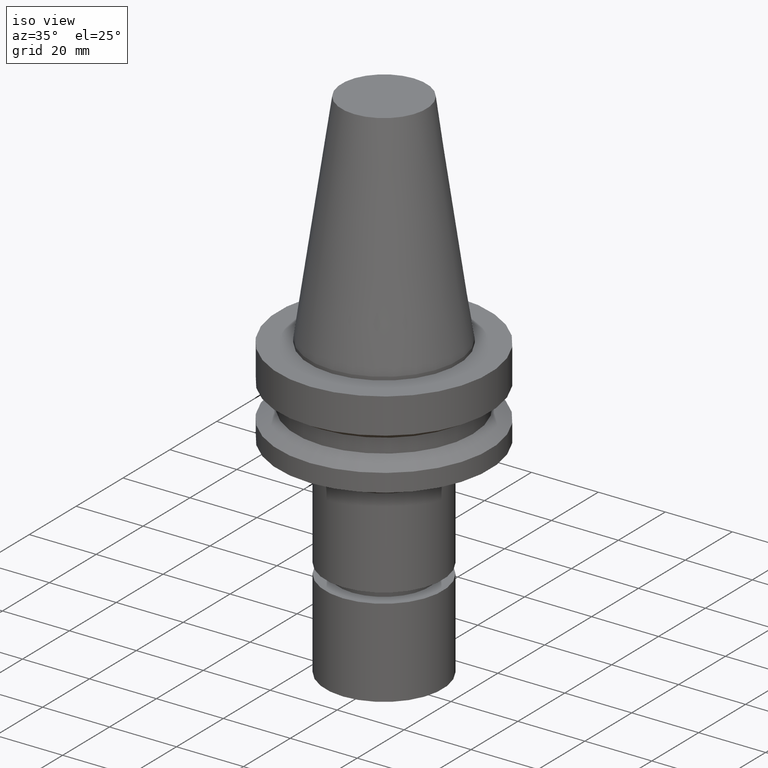
[diagram: clean part render]
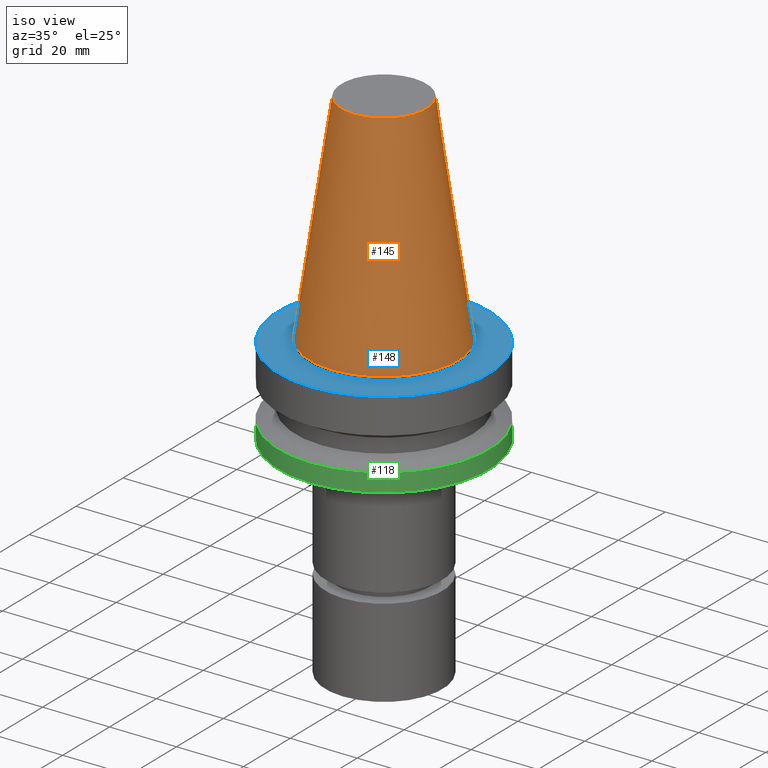
[diagram: same view with three faces highlighted in distinct colors, each labeled with its STEP entity id]
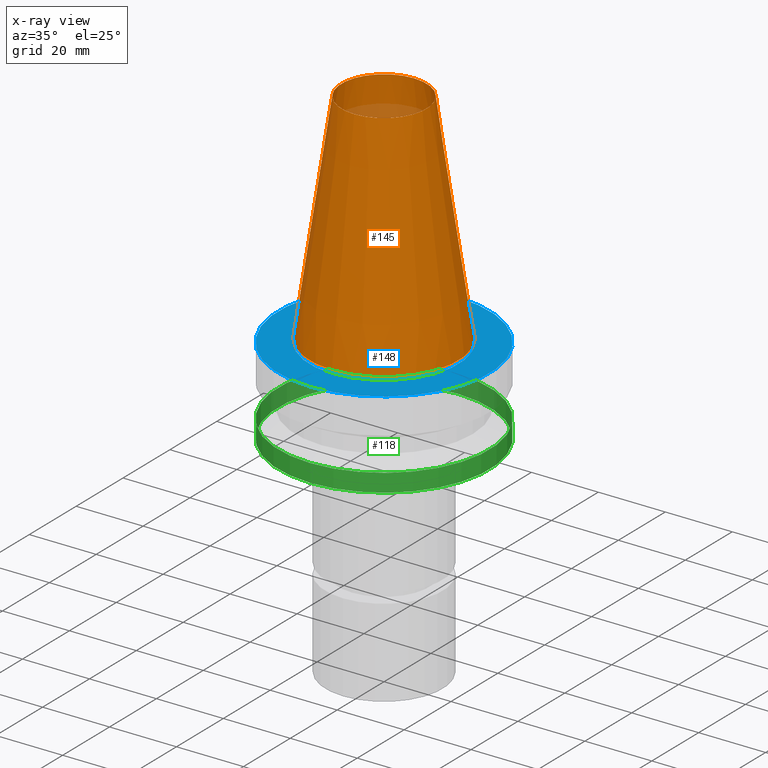
[diagram: x-ray of the same camera — body ghosted, the three highlighted faces saturated]
A machine part, iso view with three faces highlighted in distinct colors.
The next image is the same camera in x-ray (body ghosted, the three faces saturated) — at least one of them is partly hidden behind the body in this view.
Their STEP definitions:

[orange] entity #145 — the highlighted conical surface has half-angle 8.297 deg.
#106=EDGE_CURVE('Unnamed[1]',#246,#246,#247,.T.);
#120=EDGE_CURVE('Unnamed[1]',#268,#268,#269,.T.);
#145=ADVANCED_FACE('Unnamed[1]',(#306,#307),#308,.T.);
#246=VERTEX_POINT('',#433);
#247=CIRCLE('',#434,22.225);
#268=VERTEX_POINT('',#461);
#269=CIRCLE('',#462,12.6875000000001);
#306=FACE_BOUND('',#507,.T.);
#307=FACE_BOUND('',#508,.T.);
#308=CONICAL_SURFACE('',#509,17.4562500000001,0.144812498238936);
#433=CARTESIAN_POINT('',(1.71319921032766E-029,22.2250000000001,-2.8153873565375E-013));
#434=AXIS2_PLACEMENT_3D('',#629,#630,#631);
#461=CARTESIAN_POINT('',(-4.00459503321185E-015,12.6875000000002,65.4000000000001));
#462=AXIS2_PLACEMENT_3D('',#653,#654,#655);
#507=EDGE_LOOP('',(#694));
#508=EDGE_LOOP('',(#695));
#509=AXIS2_PLACEMENT_3D('',#696,#697,#698);
#629=CARTESIAN_POINT('',(1.74032777401202E-029,6.67989981040175E-014,-2.8421709430404E-013));
#630=DIRECTION('',(6.12323399573677E-017,-1.56164866711448E-016,-1.0));
#631=DIRECTION('',(4.73518747710115E-033,1.0,-1.56164866711448E-016));
#653=CARTESIAN_POINT('',(-4.00459503321185E-015,7.701218038695E-014,65.4000000000001));
#654=DIRECTION('',(6.12323399573677E-017,-1.56164866711445E-016,-1.0));
#655=DIRECTION('',(4.73518747710211E-033,1.0,-1.56164866711445E-016));
#694=ORIENTED_EDGE('',*,*,#106,.F.);
#695=ORIENTED_EDGE('',*,*,#120,.T.);
#696=CARTESIAN_POINT('',(-2.00229751660592E-015,7.19055892454838E-014,32.6999999999999));
#697=DIRECTION('',(6.12323399573677E-017,-1.56164866711493E-016,-1.0));
#698=DIRECTION('',(4.7351874771015E-033,1.0,-1.56164866711493E-016));

[blue] entity #148 — the highlighted planar face has unit normal (-0, -0, 1).
#148=ADVANCED_FACE('Unnamed[1]',(#311,#312),#313,.T.);
#170=EDGE_CURVE('Unnamed[1]',#347,#347,#348,.T.);
#174=EDGE_CURVE('Unnamed[1]',#353,#353,#354,.T.);
#311=FACE_OUTER_BOUND('',#513,.T.);
#312=FACE_BOUND('',#514,.T.);
#313=PLANE('',#515);
#347=VERTEX_POINT('',#558);
#348=CIRCLE('',#559,22.225);
#353=VERTEX_POINT('',#566);
#354=CIRCLE('',#567,31.4999999999996);
#513=EDGE_LOOP('',(#700));
#514=EDGE_LOOP('',(#701));
#515=AXIS2_PLACEMENT_3D('',#702,#703,#704);
#558=CARTESIAN_POINT('',(6.12323399573622E-017,22.2250000000001,-0.999999999999912));
#559=AXIS2_PLACEMENT_3D('',#741,#742,#743);
#566=CARTESIAN_POINT('',(6.12323399573568E-017,31.4999999999997,-0.999999999999825));
#567=AXIS2_PLACEMENT_3D('',#747,#748,#749);
#700=ORIENTED_EDGE('',*,*,#174,.F.);
#701=ORIENTED_EDGE('',*,*,#170,.T.);
#702=CARTESIAN_POINT('',(6.12323399573595E-017,26.8624999999999,-0.999999999999869));
#703=DIRECTION('',(-6.12323399573677E-017,-9.35138060429241E-015,1.0));
#704=DIRECTION('',(5.77434068963536E-031,-1.0,-9.35138060429241E-015));
#741=CARTESIAN_POINT('',(6.12323399573624E-017,6.6642833237306E-014,-0.999999999999915));
#742=DIRECTION('',(6.12323399573677E-017,-1.56164866711448E-016,-1.0));
#743=DIRECTION('',(4.73518747710115E-033,1.0,-1.56164866711448E-016));
#747=CARTESIAN_POINT('',(6.12323399573563E-017,6.6642833237306E-014,-0.999999999999815));
#748=DIRECTION('',(6.12323399573677E-017,-1.56164866711434E-016,-1.0));
#749=DIRECTION('',(4.73518747709789E-033,1.0,-1.56164866711434E-016));

[green] entity #118 — the highlighted cylindrical surface (bore or boss wall) has radius 31.5 mm, axis along (0, -0, -1).
#102=EDGE_CURVE('Unnamed[1]',#240,#240,#241,.T.);
#118=ADVANCED_FACE('Unnamed[1]',(#264,#265),#266,.T.);
#130=EDGE_CURVE('Unnamed[1]',#284,#284,#285,.T.);
#240=VERTEX_POINT('',#425);
#241=CIRCLE('',#426,31.5000000000003);
#264=FACE_BOUND('',#456,.T.);
#265=FACE_BOUND('',#457,.T.);
#266=CYLINDRICAL_SURFACE('',#458,31.5000000000005);
#284=VERTEX_POINT('',#481);
#285=CIRCLE('',#482,31.5000000000007);
#425=CARTESIAN_POINT('',(1.65327317884891E-015,31.5000000000004,-26.9999999999998));
#426=AXIS2_PLACEMENT_3D('',#623,#624,#625);
#456=EDGE_LOOP('',(#648));
#457=EDGE_LOOP('',(#649));
#458=AXIS2_PLACEMENT_3D('',#650,#651,#652);
#481=CARTESIAN_POINT('',(1.32473071268174E-015,31.5000000000007,-21.6344943473346));
#482=AXIS2_PLACEMENT_3D('',#671,#672,#673);
#623=CARTESIAN_POINT('',(1.65327317884891E-015,6.25825467028069E-014,-26.9999999999998));
#624=DIRECTION('',(6.12323399573677E-017,-1.5616486671143E-016,-1.0));
#625=DIRECTION('',(4.73518747709778E-033,1.0,-1.5616486671143E-016));
#648=ORIENTED_EDGE('',*,*,#102,.F.);
#649=ORIENTED_EDGE('',*,*,#130,.T.);
#650=CARTESIAN_POINT('',(1.48900194576533E-015,6.3001498440351E-014,-24.3172471736672));
#651=DIRECTION('',(6.12323399573677E-017,-1.56164866711429E-016,-1.0));
#652=DIRECTION('',(4.73518747709776E-033,1.0,-1.56164866711429E-016));
#671=CARTESIAN_POINT('',(1.32473071268174E-015,6.34204501778952E-014,-21.6344943473346));
#672=DIRECTION('',(6.12323399573677E-017,-1.56164866711429E-016,-1.0));
#673=DIRECTION('',(4.73518747709773E-033,1.0,-1.56164866711429E-016));